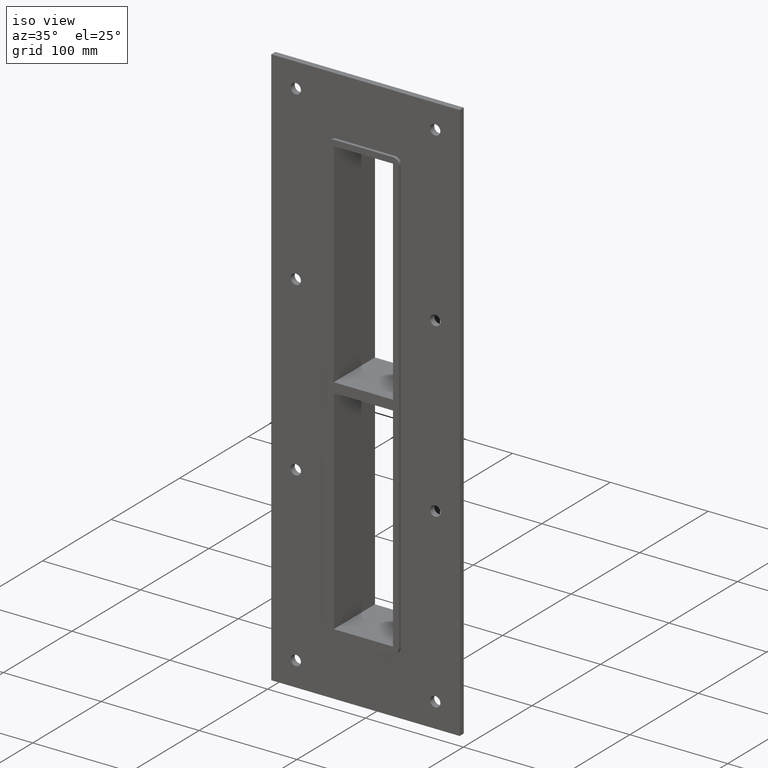
[diagram: clean part render]
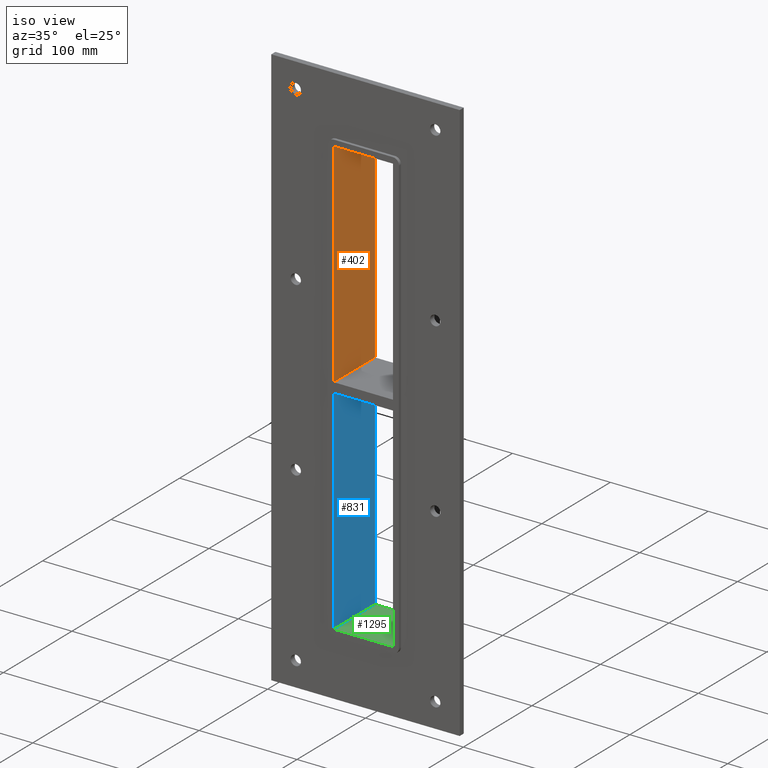
[diagram: same view with three faces highlighted in distinct colors, each labeled with its STEP entity id]
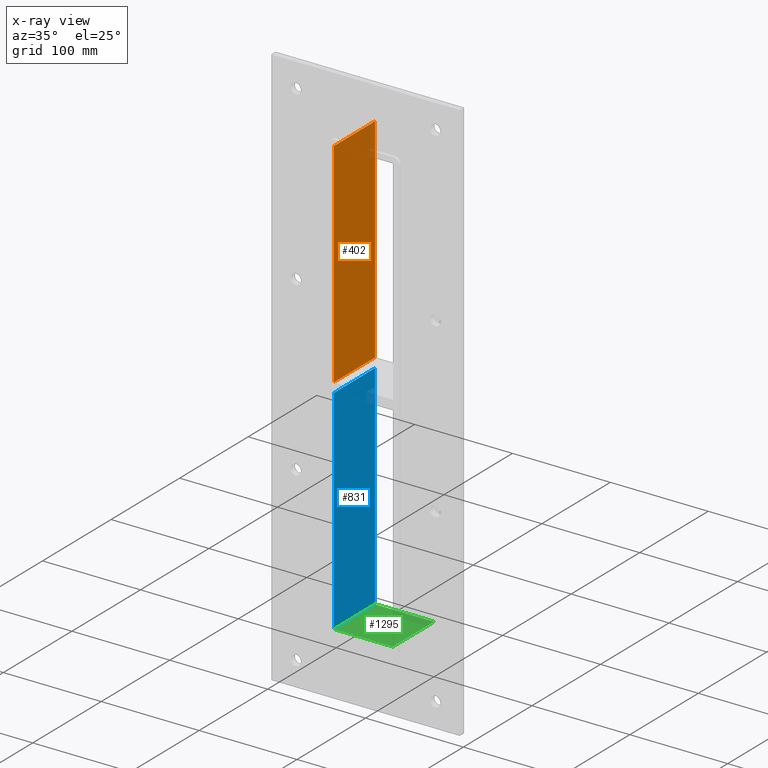
[diagram: x-ray of the same camera — body ghosted, the three highlighted faces saturated]
A machine part, iso view with three faces highlighted in distinct colors.
The next image is the same camera in x-ray (body ghosted, the three faces saturated) — at least one of them is partly hidden behind the body in this view.
Their STEP definitions:

[orange] entity #402 — the highlighted planar face has unit normal (-1, 0, 0).
#337=CARTESIAN_POINT('',(-30.249999999997076,-3.0,5.0));
#338=VERTEX_POINT('',#337);
#355=CARTESIAN_POINT('',(-30.249999999997076,57.0,5.0));
#356=VERTEX_POINT('',#355);
#363=CARTESIAN_POINT('',(-30.249999999999986,-3.0,5.0));
#364=DIRECTION('',(0.0,1.0,0.0));
#365=VECTOR('',#364,60.000000000000007);
#366=LINE('',#363,#365);
#367=EDGE_CURVE('',#338,#356,#366,.T.);
#372=CARTESIAN_POINT('',(-30.249999999999986,0.0,-223.0));
#373=DIRECTION('',(-1.0,0.0,0.0));
#374=DIRECTION('',(0.0,0.0,1.0));
#375=AXIS2_PLACEMENT_3D('',#372,#373,#374);
#376=PLANE('',#375);
#377=ORIENTED_EDGE('',*,*,#367,.T.);
#378=CARTESIAN_POINT('',(-30.249999999999986,57.0,223.0));
#379=VERTEX_POINT('',#378);
#380=CARTESIAN_POINT('',(-30.249999999999986,57.0,223.0));
#381=DIRECTION('',(0.0,0.0,-1.0));
#382=VECTOR('',#381,218.0);
#383=LINE('',#380,#382);
#384=EDGE_CURVE('',#379,#356,#383,.T.);
#385=ORIENTED_EDGE('',*,*,#384,.F.);
#386=CARTESIAN_POINT('',(-30.249999999999986,-3.0,223.0));
#387=VERTEX_POINT('',#386);
#388=CARTESIAN_POINT('',(-30.249999999999986,-3.0,223.0));
#389=DIRECTION('',(0.0,1.0,0.0));
#390=VECTOR('',#389,60.0);
#391=LINE('',#388,#390);
#392=EDGE_CURVE('',#387,#379,#391,.T.);
#393=ORIENTED_EDGE('',*,*,#392,.F.);
#394=CARTESIAN_POINT('',(-30.249999999999986,-3.0,5.0));
#395=DIRECTION('',(0.0,0.0,1.0));
#396=VECTOR('',#395,218.0);
#397=LINE('',#394,#396);
#398=EDGE_CURVE('',#338,#387,#397,.T.);
#399=ORIENTED_EDGE('',*,*,#398,.F.);
#400=EDGE_LOOP('',(#377,#385,#393,#399));
#401=FACE_OUTER_BOUND('',#400,.T.);
#402=ADVANCED_FACE('',(#401),#376,.F.);

[blue] entity #831 — the highlighted planar face has unit normal (-1, 0, 0).
#299=CARTESIAN_POINT('',(-30.249999999997076,-3.0,-5.000000000011369));
#300=VERTEX_POINT('',#299);
#307=CARTESIAN_POINT('',(-30.249999999997076,57.0,-5.000000000011369));
#308=VERTEX_POINT('',#307);
#309=CARTESIAN_POINT('',(-30.249999999999986,57.000000000000007,-5.00000000001137));
#310=DIRECTION('',(0.0,-1.0,0.0));
#311=VECTOR('',#310,60.000000000000007);
#312=LINE('',#309,#311);
#313=EDGE_CURVE('',#308,#300,#312,.T.);
#801=CARTESIAN_POINT('',(-30.249999999999986,0.0,-223.0));
#802=DIRECTION('',(-1.0,0.0,0.0));
#803=DIRECTION('',(0.0,0.0,1.0));
#804=AXIS2_PLACEMENT_3D('',#801,#802,#803);
#805=PLANE('',#804);
#806=ORIENTED_EDGE('',*,*,#313,.T.);
#807=CARTESIAN_POINT('',(-30.249999999999986,-3.0,-223.0));
#808=VERTEX_POINT('',#807);
#809=CARTESIAN_POINT('',(-30.249999999999986,-3.0,-223.0));
#810=DIRECTION('',(0.0,0.0,1.0));
#811=VECTOR('',#810,217.99999999998863);
#812=LINE('',#809,#811);
#813=EDGE_CURVE('',#808,#300,#812,.T.);
#814=ORIENTED_EDGE('',*,*,#813,.F.);
#815=CARTESIAN_POINT('',(-30.249999999999986,57.0,-223.0));
#816=VERTEX_POINT('',#815);
#817=CARTESIAN_POINT('',(-30.249999999999986,-3.0,-223.0));
#818=DIRECTION('',(0.0,1.0,0.0));
#819=VECTOR('',#818,60.0);
#820=LINE('',#817,#819);
#821=EDGE_CURVE('',#808,#816,#820,.T.);
#822=ORIENTED_EDGE('',*,*,#821,.T.);
#823=CARTESIAN_POINT('',(-30.249999999999986,57.0,-5.000000000011369));
#824=DIRECTION('',(0.0,0.0,-1.0));
#825=VECTOR('',#824,217.99999999998863);
#826=LINE('',#823,#825);
#827=EDGE_CURVE('',#308,#816,#826,.T.);
#828=ORIENTED_EDGE('',*,*,#827,.F.);
#829=EDGE_LOOP('',(#806,#814,#822,#828));
#830=FACE_OUTER_BOUND('',#829,.T.);
#831=ADVANCED_FACE('',(#830),#805,.F.);

[green] entity #1295 — the highlighted planar face has unit normal (0, 0, -1).
#409=CARTESIAN_POINT('',(30.249999999999986,57.0,-223.0));
#410=VERTEX_POINT('',#409);
#417=CARTESIAN_POINT('',(30.249999999999986,-3.0,-223.0));
#418=VERTEX_POINT('',#417);
#419=CARTESIAN_POINT('',(30.249999999999986,56.999999999999993,-223.0));
#420=DIRECTION('',(0.0,-1.0,0.0));
#421=VECTOR('',#420,59.999999999999993);
#422=LINE('',#419,#421);
#423=EDGE_CURVE('',#410,#418,#422,.T.);
#807=CARTESIAN_POINT('',(-30.249999999999986,-3.0,-223.0));
#808=VERTEX_POINT('',#807);
#815=CARTESIAN_POINT('',(-30.249999999999986,57.0,-223.0));
#816=VERTEX_POINT('',#815);
#817=CARTESIAN_POINT('',(-30.249999999999986,-3.0,-223.0));
#818=DIRECTION('',(0.0,1.0,0.0));
#819=VECTOR('',#818,60.0);
#820=LINE('',#817,#819);
#821=EDGE_CURVE('',#808,#816,#820,.T.);
#1161=CARTESIAN_POINT('',(30.249999999999986,-3.0,-223.0));
#1162=DIRECTION('',(-1.0,0.0,0.0));
#1163=VECTOR('',#1162,60.499999999999972);
#1164=LINE('',#1161,#1163);
#1165=EDGE_CURVE('',#418,#808,#1164,.T.);
#1279=CARTESIAN_POINT('',(30.249999999999986,0.0,-223.0));
#1280=DIRECTION('',(0.0,0.0,-1.0));
#1281=DIRECTION('',(-1.0,0.0,0.0));
#1282=AXIS2_PLACEMENT_3D('',#1279,#1280,#1281);
#1283=PLANE('',#1282);
#1284=ORIENTED_EDGE('',*,*,#821,.F.);
#1285=ORIENTED_EDGE('',*,*,#1165,.F.);
#1286=ORIENTED_EDGE('',*,*,#423,.F.);
#1287=CARTESIAN_POINT('',(-30.249999999999986,57.0,-223.0));
#1288=DIRECTION('',(1.0,0.0,0.0));
#1289=VECTOR('',#1288,60.499999999999972);
#1290=LINE('',#1287,#1289);
#1291=EDGE_CURVE('',#816,#410,#1290,.T.);
#1292=ORIENTED_EDGE('',*,*,#1291,.F.);
#1293=EDGE_LOOP('',(#1284,#1285,#1286,#1292));
#1294=FACE_OUTER_BOUND('',#1293,.T.);
#1295=ADVANCED_FACE('',(#1294),#1283,.F.);